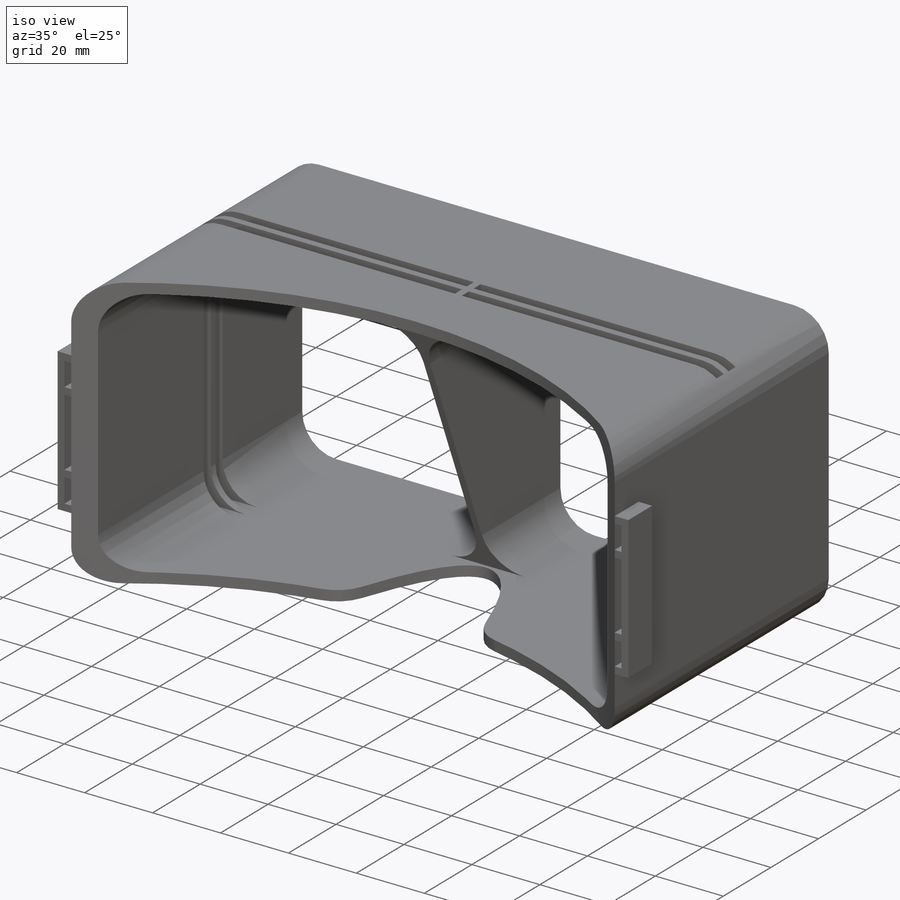
[diagram: iso view]
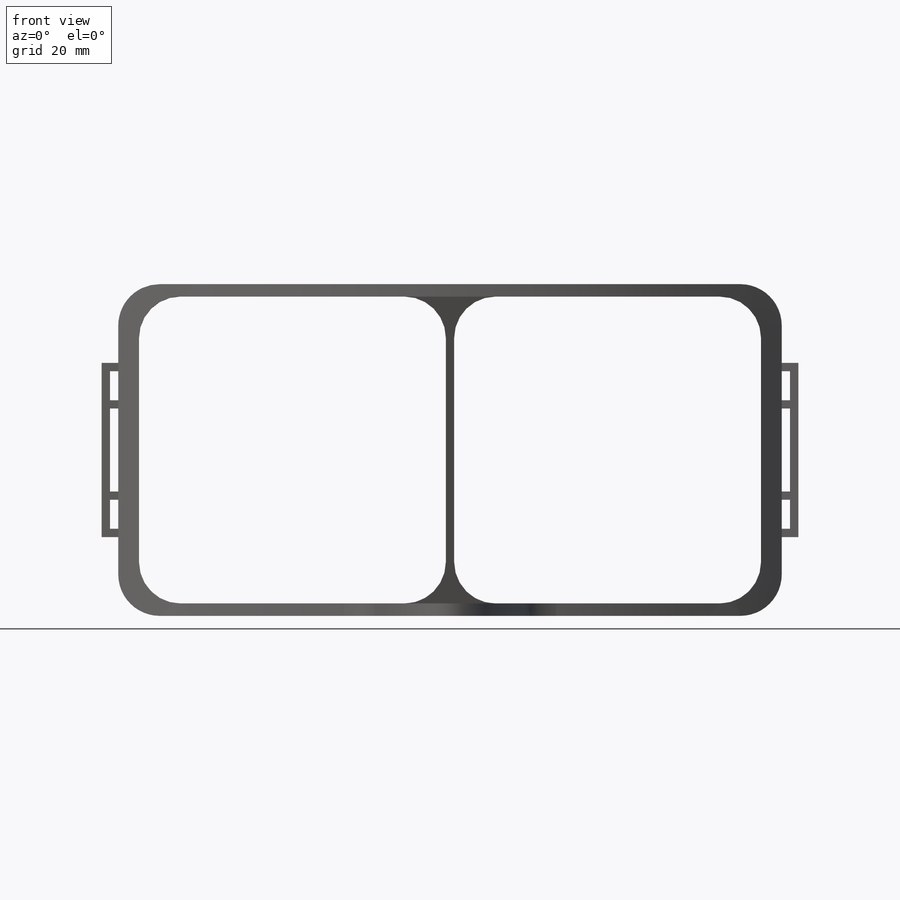
[diagram: front view]
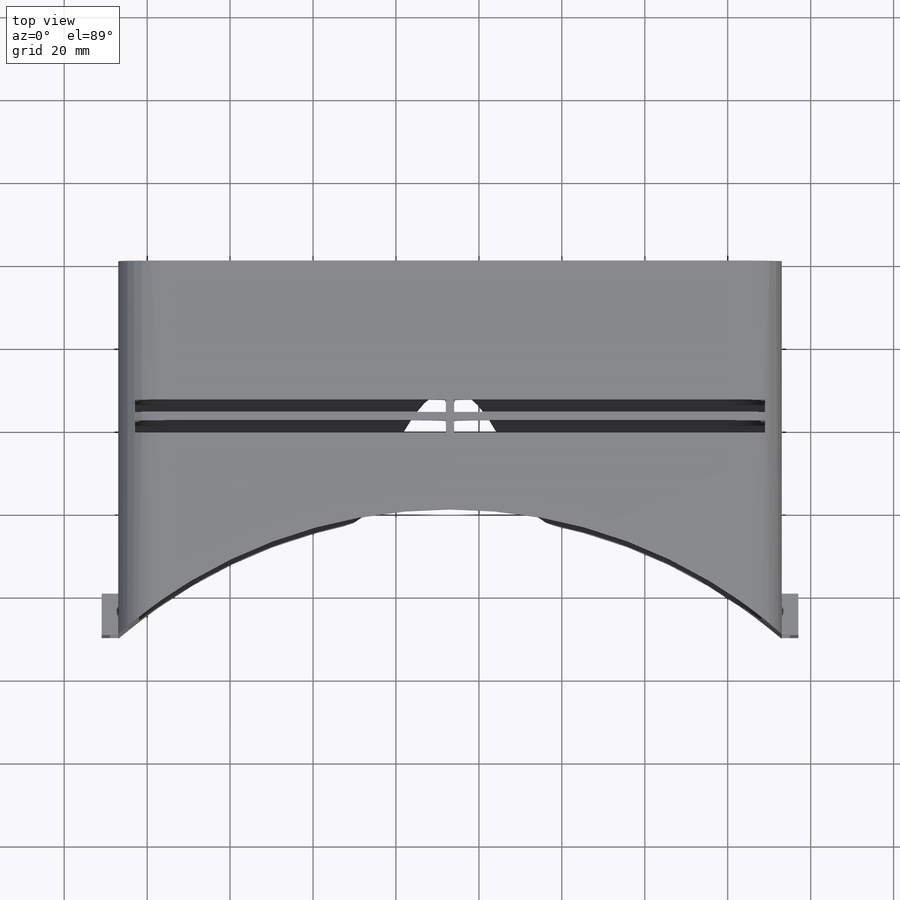
[diagram: top view]
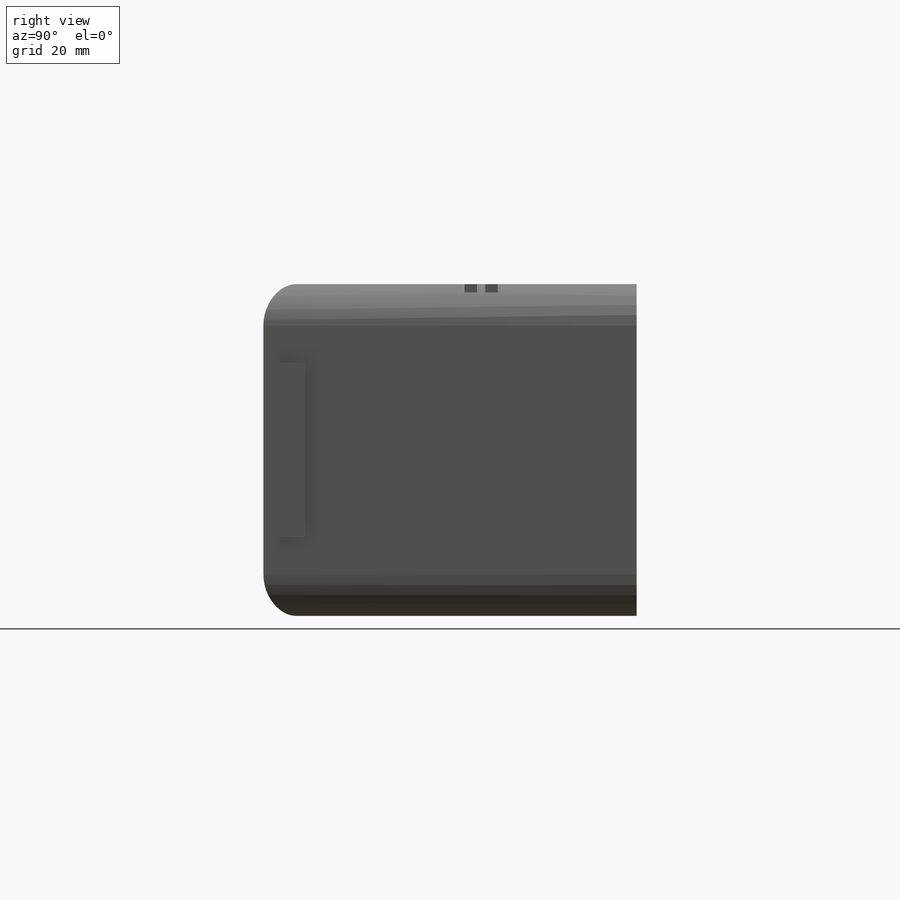
[diagram: right view]
SOLIDWORKS PART (.sldprt)
format: sldprt  version: not decoded by parser v0  size: 1,061,888 bytes
history: native  units: mm
features: fillet x14, sketch x13, cut_extrude x7, extrude x5, plane x4, material x1 (+10 scaffold rows collapsed)
feature tree (54):
  scaffold x10  (default folders/planes/origin — collapsed)
  material  "Material <não especificado>"
  plane  "Plano frontal"
  plane  "Plano superior"
  plane  "Plano direito"
  sketch  "Esboço1"  dims[c1.D1=~48.887701mm c1.D2=~95.293793mm c2.D1=160.0mm c2.D2=80.0mm]
  extrude  "Ressalto-extrusão1"  Depth=90mm
  sketch  "Esboço2"  dims[c1.D1=64.2769mm c1.D2=~139.490968mm c2.D1=3.0mm c2.D2=5.0mm c2.D3=5.0mm c2.D4=3.0mm]
  cut_extrude  "Corte-extrusão1"  Depth=90mm
  sketch  "Esboço3"  dims[D1=30.0mm]
  cut_extrude  "Corte-extrusão2"  Depth=90mm
  sketch  "Esboço4"  dims[D1=60.0mm D2=60.0mm D3=60.0mm D4=60.0mm]
  sketch  "Esboço5"  dims[D1=30.0mm D2=~11.179969mm]
  cut_extrude  "Corte-extrusão3"  [1 undecoded]
  fillet  "Filete1"  Radius=10mm
  fillet  "Filete2"  Radius=10mm
  plane  "Plano1"  Offset=81mm
  sketch  "Esboço7"  dims[D1=30.0mm D2=28.0mm D3=80.0mm]
  extrude  "Ressalto-extrusão3"  Depth=2mm
  sketch  "Esboço8"  dims[c1.D1=~4.206603mm c1.D2=~69.829616mm c2.D1=3.0mm c2.D2=75.0mm c2.D3=4.0mm c2.D4=5.0mm c2.D5=~73.629249mm c3.D4=4.0mm c3.D5=75.0mm c3.D6=53.5mm c3.D7=53.5mm c3.D8=3.0mm c3.D9=~6.698559mm c3.D10=~70.68741mm c4.D9=~6.698559mm c4.D10=~62.894333mm c5.D9=75.0mm c5.D10=75.0mm c5.D11=4.0mm c5.D12=4.0mm c5.D13=2.0mm c5.D14=2.0mm c5.D15=3.0mm c5.D16=3.0mm]
  sketch  "Esboço9"  dims[c1.D1=~29.342296mm c1.D2=~18.77158mm c2.D1=19.0mm c2.D2=42.0mm c2.D3=10.0mm]
  sketch  "Esboço14"  dims[c1.D1=~19.401845mm c1.D2=~23.087684mm c2.D1=40.0mm c2.D2=30.0mm c2.D3=3.0mm c2.D4=~19.401845mm]
  extrude  "Ressalto-extrusão10"  Depth=2mm
  fillet  "Filete15"  Radius=10mm
  fillet  "Filete16"  Radius=10mm
  sketch  "Esboço16"  dims[D1=3.0mm D2=3.0mm D3=3.0mm D4=29.0mm D5=30.0mm D6=31.2mm D7=74.0mm]
  cut_extrude  "Corte-extrusão8"  Depth=20mm
  fillet  "Filete17"  Radius=10mm
  fillet  "Filete18"  Radius=10mm
  fillet  "Filete19"  Radius=10mm
  fillet  "Filete20"  Radius=10mm
  fillet  "Filete21"  Radius=10mm
  fillet  "Filete22"  Radius=10mm
  cut_extrude  "Corte-extrusão9"  Depth=77mm
  fillet  "Filete24"  Radius=10mm
  fillet  "Filete25"  Radius=10mm
  fillet  "Filete26"  Radius=10mm
  fillet  "Filete27"  Radius=10mm
  extrude  "Ressalto-extrusão11"  Depth=4mm
  sketch  "Esboço17"  dims[c1.D1=~12.179732mm c1.D2=~1.894625mm c2.D1=~10.623433mm c2.D2=~2.503612mm c3.D1=~7.172509mm c3.D2=~1.251806mm c4.D1=~2.029955mm c4.D2=~0.876923mm c5.D1=0.0mm c5.D2=0.0mm c5.D3=0.0mm c5.D4=2.0mm c5.D5=2.0mm c5.D6=2.0mm c5.D7=2.0mm c5.D8=11.0mm c5.D9=7.0mm c5.D10=20.0mm c5.D11=2.0mm c5.D12=7.0mm]
  cut_extrude  "Corte-extrusão10"  Depth=10mm
  sketch  "Esboço18"  dims[c1.D1=~24.279525mm c1.D2=~12.119208mm c2.D1=19.0mm c2.D2=42.0mm c2.D3=10.0mm]
  extrude  "Ressalto-extrusão12"  Depth=4mm
  sketch  "Esboço19"  dims[c1.D1=~6.681017mm c1.D2=~2.574975mm c2.D1=~6.541829mm c2.D2=~2.157412mm c3.D1=~8.212083mm c3.D2=~1.739848mm c4.D1=0.0mm c4.D2=~2.157412mm c5.D2=90.0deg c6.D2=0.0mm c6.D3=0.0mm c6.D4=2.0mm c6.D5=2.0mm c6.D6=2.0mm c6.D7=2.0mm c6.D8=11.0mm c6.D9=7.0mm c6.D10=20.0mm c6.D11=2.0mm c6.D12=7.0mm]
  cut_extrude  "Corte-extrusão11"  Depth=10mm
decode coverage: 38 of 39 modeling features carry decoded parameters
note: ~ marks probable driven/reference dimensions
note: 1 parameter value undecoded
note: suppression state not decoded; provenance and decode notes live in map.json
